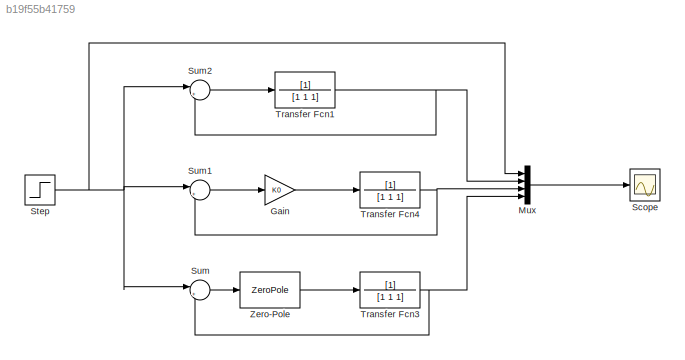
MODEL slx_b19f55b41759
KIND model
BLOCK [Gain] Gain
  Gain = K0
  OutDataTypeStr = Inherit: Inherit via internal rule
  ParamDataTypeStr = Inherit: Inherit via internal rule
  SaturateOnIntegerOverflow = off
BLOCK [Mux] Mux
  DisplayOption = bar
  Ports = [4, 1]
BLOCK [Scope] Scope
  DataFormat = StructureWithTime
  Floating = off
  NumInputPorts = 1
  Ports = [1]
  SampleTime = 0
  ShowLegends = off
BLOCK [Step] Step
  SampleTime = 0
BLOCK [Sum] Sum
  IconShape = round
  InputSameDT = off
  Inputs = |+-
  OutDataTypeStr = Inherit: Inherit via internal rule
  Ports = [2, 1]
  SaturateOnIntegerOverflow = off
BLOCK [Sum] Sum1
  IconShape = round
  InputSameDT = off
  Inputs = |+-
  OutDataTypeStr = Inherit: Inherit via internal rule
  Ports = [2, 1]
  SaturateOnIntegerOverflow = off
BLOCK [Sum] Sum2
  IconShape = round
  InputSameDT = off
  Inputs = |+-
  OutDataTypeStr = Inherit: Inherit via internal rule
  Ports = [2, 1]
  SaturateOnIntegerOverflow = off
BLOCK [TransferFcn] Transfer Fcn1
  Denominator = [1 1 1]
BLOCK [TransferFcn] Transfer Fcn3
  Denominator = [1 1 1]
BLOCK [TransferFcn] Transfer Fcn4
  Denominator = [1 1 1]
BLOCK [ZeroPole] Zero-Pole
  Gain = [1.95]
  Poles = [-0.003]
  Zeros = [-0.15]
LINE Gain:1 -> Transfer Fcn4:1
LINE Mux:1 -> Scope:1
NET Step:1 -> Mux:1, Sum1:1, Sum2:1, Sum:1
LINE Sum1:1 -> Gain:1
LINE Sum2:1 -> Transfer Fcn1:1
LINE Sum:1 -> Zero-Pole:1
NET Transfer Fcn1:1 -> Mux:2, Sum2:2
NET Transfer Fcn3:1 -> Mux:4, Sum:2
NET Transfer Fcn4:1 -> Mux:3, Sum1:2
LINE Zero-Pole:1 -> Transfer Fcn3:1
note: NET lines group one-source signal fan-out (src -> all destinations, sorted); 1:1 wires keep LINE
